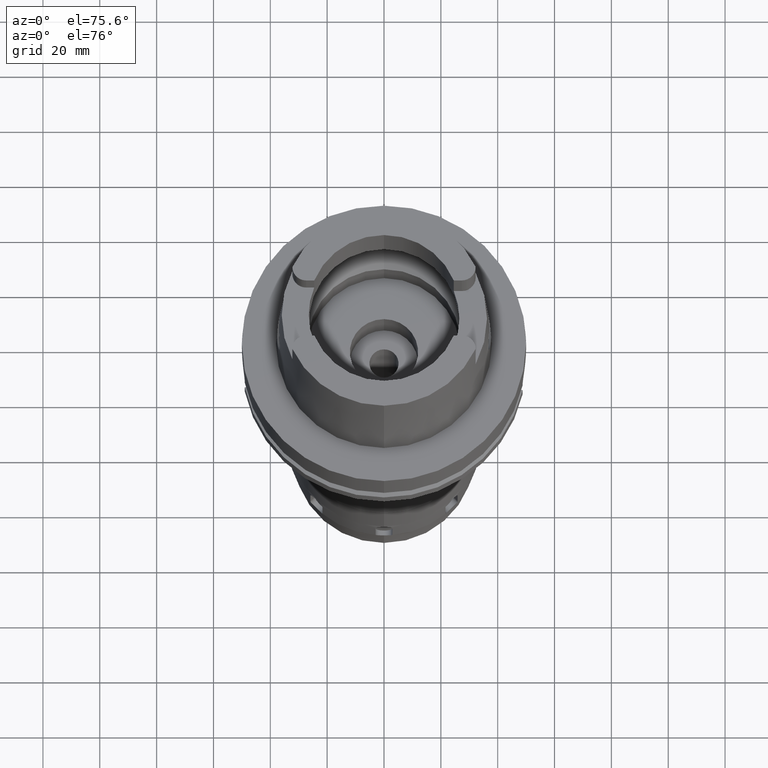
[diagram: clean part render]
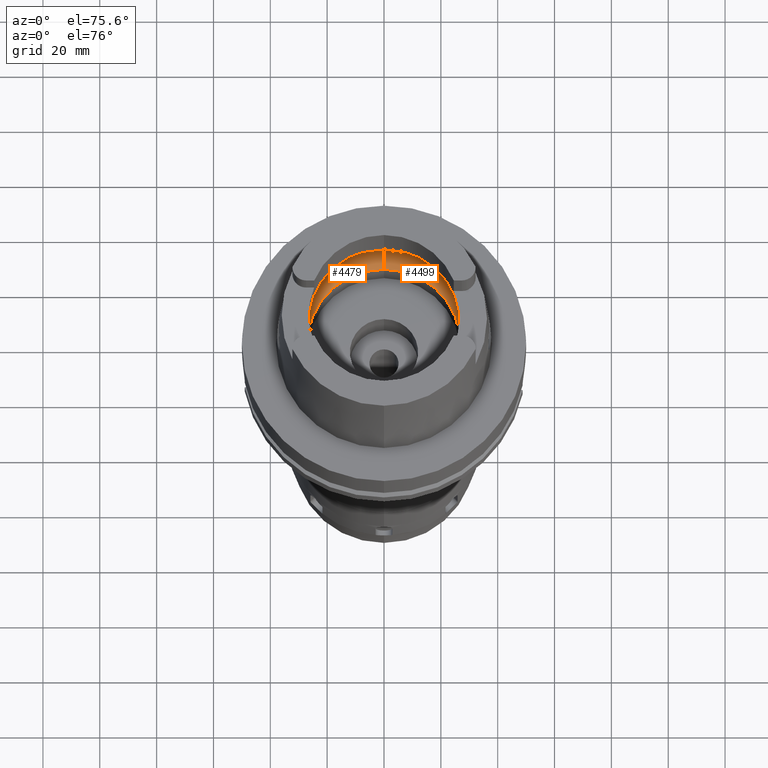
[diagram: same view with one multi-face feature highlighted, each face labeled with its STEP entity id]
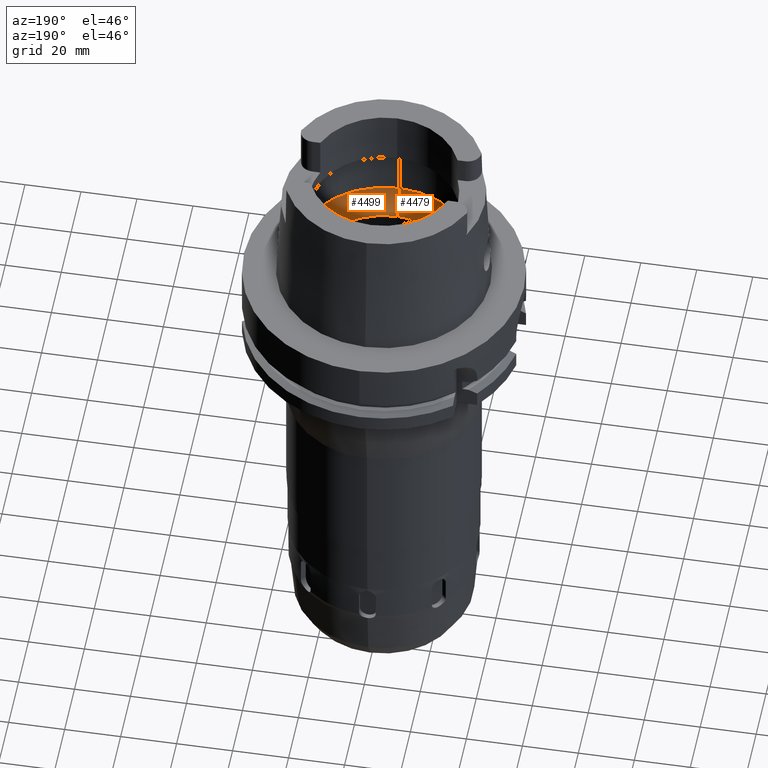
[diagram: same view with one multi-face feature highlighted, each face labeled with its STEP entity id]
A machine part, auxiliary view. The highlighted faces form ONE feature: a constant-radius fillet chain: 2 tangent blend faces with common blend radius 12 mm. The faces share edges in the B-rep.
A second angle (auxiliary view) of the same feature is appended — it is thin or edge-on in the first view.
Their STEP definitions:
[1] entity #4499 (Torus):
#640=CARTESIAN_POINT('',(0.E0,-1.95E1,9.496624327026E0));
#641=DIRECTION('',(-1.E0,0.E0,0.E0));
#642=DIRECTION('',(0.E0,-6.166666666667E-1,-7.872243785746E-1));
#643=AXIS2_PLACEMENT_3D('',#640,#641,#642);
#656=CARTESIAN_POINT('',(3.148971910754E1,0.E0,9.E0));
#657=CARTESIAN_POINT('',(3.148971910754E1,-2.740816369241E-1,9.E0));
#658=CARTESIAN_POINT('',(3.148416657244E1,-8.216274657312E-1,9.037606582852E0));
#659=CARTESIAN_POINT('',(3.145843229729E1,-1.626122314408E0,9.205188491873E0));
#660=CARTESIAN_POINT('',(3.142817542026E1,-2.140654635827E0,9.388263020288E0));
#661=CARTESIAN_POINT('',(3.140918884336E1,-2.390158196044E0,9.496624327026E0));
#666=CARTESIAN_POINT('',(0.E0,0.E0,9.496624327026E0));
#667=DIRECTION('',(0.E0,0.E0,-1.E0));
#668=DIRECTION('',(9.971171061384E-1,-7.587803796965E-2,0.E0));
#669=AXIS2_PLACEMENT_3D('',#666,#667,#668);
#674=CARTESIAN_POINT('',(0.E0,0.E0,4.993178413023E-2));
#675=DIRECTION('',(0.E0,0.E0,1.E0));
#676=DIRECTION('',(0.E0,-1.E0,0.E0));
#677=AXIS2_PLACEMENT_3D('',#674,#675,#676);
#682=CARTESIAN_POINT('',(0.E0,1.95E1,9.496624327026E0));
#683=DIRECTION('',(1.E0,0.E0,0.E0));
#684=DIRECTION('',(0.E0,6.166666666667E-1,-7.872243785746E-1));
#685=AXIS2_PLACEMENT_3D('',#682,#683,#684);
#690=CARTESIAN_POINT('',(0.E0,0.E0,9.496624327026E0));
#691=DIRECTION('',(0.E0,0.E0,-1.E0));
#692=DIRECTION('',(0.E0,1.E0,0.E0));
#693=AXIS2_PLACEMENT_3D('',#690,#691,#692);
#698=CARTESIAN_POINT('',(3.140918884336E1,2.390158196044E0,9.496624327026E0));
#699=CARTESIAN_POINT('',(3.142817530553E1,2.140656143518E0,9.388263675090E0));
#700=CARTESIAN_POINT('',(3.145843215351E1,1.626125992770E0,9.205189397203E0));
#701=CARTESIAN_POINT('',(3.148416663622E1,8.216256622719E-1,9.037606172252E0));
#702=CARTESIAN_POINT('',(3.148971910754E1,2.740808193429E-1,9.E0));
#703=CARTESIAN_POINT('',(3.148971910754E1,0.E0,9.E0));
#715=CARTESIAN_POINT('',(3.140918884336E1,-2.390158196044E0,9.496624327026E0));
#746=CARTESIAN_POINT('',(3.140918884336E1,2.390158196044E0,9.496624327026E0));
#3652=CARTESIAN_POINT('',(0.E0,-3.15E1,9.496624327026E0));
#3653=VERTEX_POINT('',#3652);
#3654=CARTESIAN_POINT('',(0.E0,3.15E1,9.496624327026E0));
#3655=VERTEX_POINT('',#3654);
#3660=VERTEX_POINT('',#715);
#3662=VERTEX_POINT('',#656);
#3663=VERTEX_POINT('',#746);
#3664=CARTESIAN_POINT('',(0.E0,2.69E1,4.993178413023E-2));
#3665=VERTEX_POINT('',#3664);
#3666=CARTESIAN_POINT('',(0.E0,-2.69E1,4.993178413022E-2));
#3667=VERTEX_POINT('',#3666);
#4480=CARTESIAN_POINT('',(0.E0,0.E0,9.496624327026E0));
#4481=DIRECTION('',(0.E0,0.E0,1.E0));
#4482=DIRECTION('',(0.E0,1.E0,0.E0));
#4483=AXIS2_PLACEMENT_3D('',#4480,#4481,#4482);
#4484=TOROIDAL_SURFACE('',#4483,1.95E1,1.2E1);
#4486=ORIENTED_EDGE('',*,*,#4485,.T.);
#4488=ORIENTED_EDGE('',*,*,#4487,.T.);
#4489=ORIENTED_EDGE('',*,*,#4474,.F.);
#4491=ORIENTED_EDGE('',*,*,#4490,.T.);
#4492=ORIENTED_EDGE('',*,*,#4470,.T.);
#4494=ORIENTED_EDGE('',*,*,#4493,.T.);
#4496=ORIENTED_EDGE('',*,*,#4495,.T.);
#4497=EDGE_LOOP('',(#4486,#4488,#4489,#4491,#4492,#4494,#4496));
#4498=FACE_OUTER_BOUND('',#4497,.F.);
#644=CIRCLE('',#643,1.2E1);
#662=B_SPLINE_CURVE_WITH_KNOTS('',3,(#656,#657,#658,#659,#660,#661),
.UNSPECIFIED.,.F.,.F.,(4,1,1,4),(0.E0,3.333333333333E-1,6.666666666667E-1,1.E0),
.UNSPECIFIED.);
#670=CIRCLE('',#669,3.15E1);
#678=CIRCLE('',#677,2.69E1);
#686=CIRCLE('',#685,1.2E1);
#694=CIRCLE('',#693,3.15E1);
#704=B_SPLINE_CURVE_WITH_KNOTS('',3,(#698,#699,#700,#701,#702,#703),
.UNSPECIFIED.,.F.,.F.,(4,1,1,4),(0.E0,3.333333333333E-1,6.666666666667E-1,1.E0),
.UNSPECIFIED.);
#4470=EDGE_CURVE('',#3665,#3655,#686,.T.);
#4474=EDGE_CURVE('',#3667,#3653,#644,.T.);
#4485=EDGE_CURVE('',#3662,#3660,#662,.T.);
#4487=EDGE_CURVE('',#3660,#3653,#670,.T.);
#4490=EDGE_CURVE('',#3667,#3665,#678,.T.);
#4493=EDGE_CURVE('',#3655,#3663,#694,.T.);
#4495=EDGE_CURVE('',#3663,#3662,#704,.T.);
#4499=ADVANCED_FACE('',(#4498),#4484,.F.);
[2] entity #4479 (Torus):
#560=CARTESIAN_POINT('',(-3.140918884336E1,-2.390158196044E0,9.496624327026E0));
#604=CARTESIAN_POINT('',(-3.140918884336E1,-2.390158196044E0,9.496624327026E0));
#605=CARTESIAN_POINT('',(-3.142817545704E1,-2.140654152533E0,9.388262810390E0));
#606=CARTESIAN_POINT('',(-3.145843235401E1,-1.626121130666E0,9.205188134635E0));
#607=CARTESIAN_POINT('',(-3.148416659375E1,-8.216262390445E-1,
9.037606438216E0));
#608=CARTESIAN_POINT('',(-3.148971910754E1,-2.740811097498E-1,9.E0));
#609=CARTESIAN_POINT('',(-3.148971910754E1,0.E0,9.E0));
#614=CARTESIAN_POINT('',(-3.148971910754E1,0.E0,9.E0));
#615=CARTESIAN_POINT('',(-3.148971910754E1,2.740813517952E-1,9.E0));
#616=CARTESIAN_POINT('',(-3.148416661469E1,8.216269012394E-1,9.037606318337E0));
#617=CARTESIAN_POINT('',(-3.145843209623E1,1.626127188331E0,9.205189758010E0));
#618=CARTESIAN_POINT('',(-3.142817526839E1,2.140656631637E0,9.388263887083E0));
#619=CARTESIAN_POINT('',(-3.140918884336E1,2.390158196044E0,9.496624327026E0));
#624=CARTESIAN_POINT('',(0.E0,0.E0,9.496624327026E0));
#625=DIRECTION('',(0.E0,0.E0,-1.E0));
#626=DIRECTION('',(-9.971171061384E-1,7.587803796965E-2,0.E0));
#627=AXIS2_PLACEMENT_3D('',#624,#625,#626);
#632=CARTESIAN_POINT('',(0.E0,0.E0,4.993178413022E-2));
#633=DIRECTION('',(0.E0,0.E0,1.E0));
#634=DIRECTION('',(0.E0,1.E0,0.E0));
#635=AXIS2_PLACEMENT_3D('',#632,#633,#634);
#640=CARTESIAN_POINT('',(0.E0,-1.95E1,9.496624327026E0));
#641=DIRECTION('',(-1.E0,0.E0,0.E0));
#642=DIRECTION('',(0.E0,-6.166666666667E-1,-7.872243785746E-1));
#643=AXIS2_PLACEMENT_3D('',#640,#641,#642);
#648=CARTESIAN_POINT('',(0.E0,0.E0,9.496624327026E0));
#649=DIRECTION('',(0.E0,0.E0,-1.E0));
#650=DIRECTION('',(0.E0,-1.E0,0.E0));
#651=AXIS2_PLACEMENT_3D('',#648,#649,#650);
#682=CARTESIAN_POINT('',(0.E0,1.95E1,9.496624327026E0));
#683=DIRECTION('',(1.E0,0.E0,0.E0));
#684=DIRECTION('',(0.E0,6.166666666667E-1,-7.872243785746E-1));
#685=AXIS2_PLACEMENT_3D('',#682,#683,#684);
#3651=VERTEX_POINT('',#560);
#3652=CARTESIAN_POINT('',(0.E0,-3.15E1,9.496624327026E0));
#3653=VERTEX_POINT('',#3652);
#3654=CARTESIAN_POINT('',(0.E0,3.15E1,9.496624327026E0));
#3655=VERTEX_POINT('',#3654);
#3656=CARTESIAN_POINT('',(-3.140918884336E1,2.390158196044E0,9.496624327026E0));
#3657=VERTEX_POINT('',#3656);
#3658=CARTESIAN_POINT('',(-3.148971910754E1,0.E0,9.E0));
#3659=VERTEX_POINT('',#3658);
#3664=CARTESIAN_POINT('',(0.E0,2.69E1,4.993178413023E-2));
#3665=VERTEX_POINT('',#3664);
#3666=CARTESIAN_POINT('',(0.E0,-2.69E1,4.993178413022E-2));
#3667=VERTEX_POINT('',#3666);
#4462=CARTESIAN_POINT('',(0.E0,0.E0,9.496624327026E0));
#4463=DIRECTION('',(0.E0,0.E0,1.E0));
#4464=DIRECTION('',(0.E0,1.E0,0.E0));
#4465=AXIS2_PLACEMENT_3D('',#4462,#4463,#4464);
#4466=TOROIDAL_SURFACE('',#4465,1.95E1,1.2E1);
#4467=ORIENTED_EDGE('',*,*,#4443,.T.);
#4468=ORIENTED_EDGE('',*,*,#4454,.T.);
#4469=ORIENTED_EDGE('',*,*,#4425,.T.);
#4471=ORIENTED_EDGE('',*,*,#4470,.F.);
#4473=ORIENTED_EDGE('',*,*,#4472,.T.);
#4475=ORIENTED_EDGE('',*,*,#4474,.T.);
#4476=ORIENTED_EDGE('',*,*,#4418,.T.);
#4477=EDGE_LOOP('',(#4467,#4468,#4469,#4471,#4473,#4475,#4476));
#4478=FACE_OUTER_BOUND('',#4477,.F.);
#610=B_SPLINE_CURVE_WITH_KNOTS('',3,(#604,#605,#606,#607,#608,#609),
.UNSPECIFIED.,.F.,.F.,(4,1,1,4),(0.E0,3.333333333333E-1,6.666666666667E-1,1.E0),
.UNSPECIFIED.);
#620=B_SPLINE_CURVE_WITH_KNOTS('',3,(#614,#615,#616,#617,#618,#619),
.UNSPECIFIED.,.F.,.F.,(4,1,1,4),(0.E0,3.333333333333E-1,6.666666666667E-1,1.E0),
.UNSPECIFIED.);
#628=CIRCLE('',#627,3.15E1);
#636=CIRCLE('',#635,2.69E1);
#644=CIRCLE('',#643,1.2E1);
#652=CIRCLE('',#651,3.15E1);
#686=CIRCLE('',#685,1.2E1);
#4418=EDGE_CURVE('',#3653,#3651,#652,.T.);
#4425=EDGE_CURVE('',#3657,#3655,#628,.T.);
#4443=EDGE_CURVE('',#3651,#3659,#610,.T.);
#4454=EDGE_CURVE('',#3659,#3657,#620,.T.);
#4470=EDGE_CURVE('',#3665,#3655,#686,.T.);
#4472=EDGE_CURVE('',#3665,#3667,#636,.T.);
#4474=EDGE_CURVE('',#3667,#3653,#644,.T.);
#4479=ADVANCED_FACE('',(#4478),#4466,.F.);